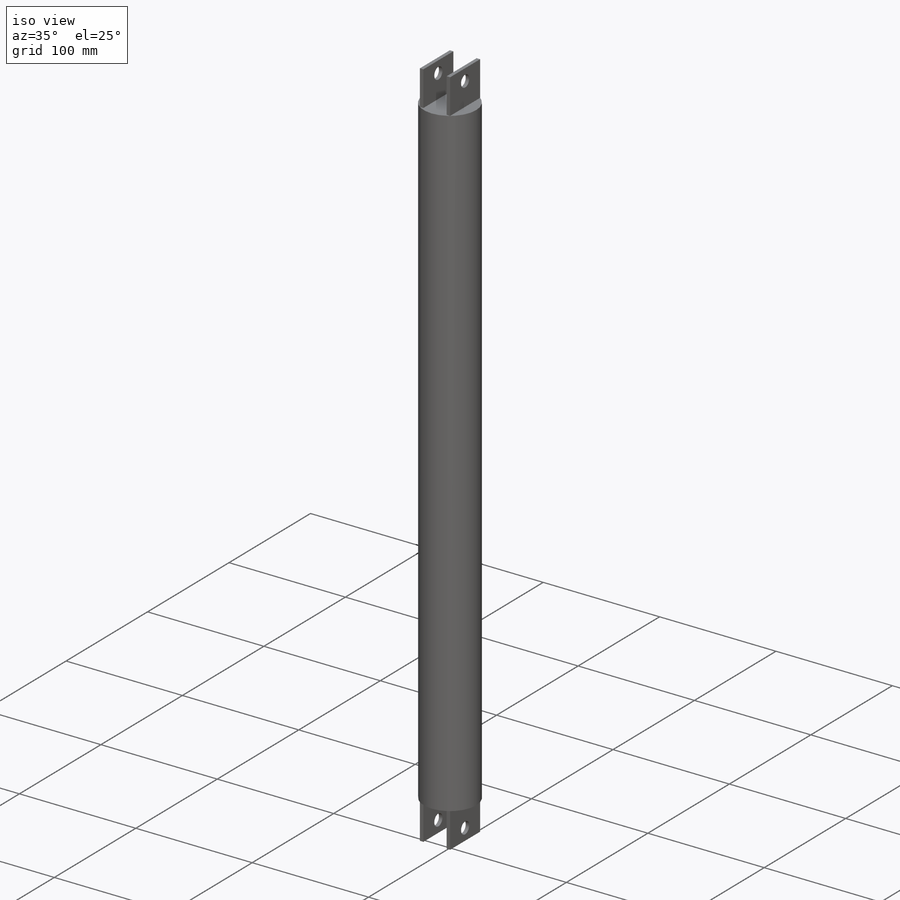
[diagram: iso view]
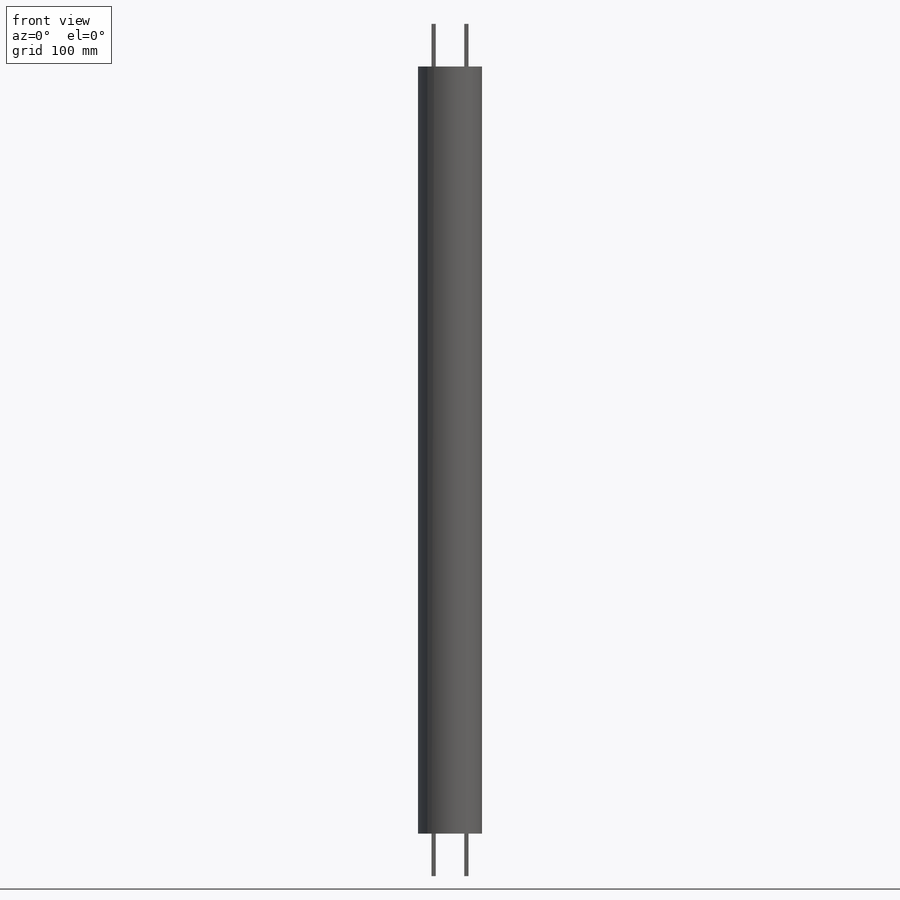
[diagram: front view]
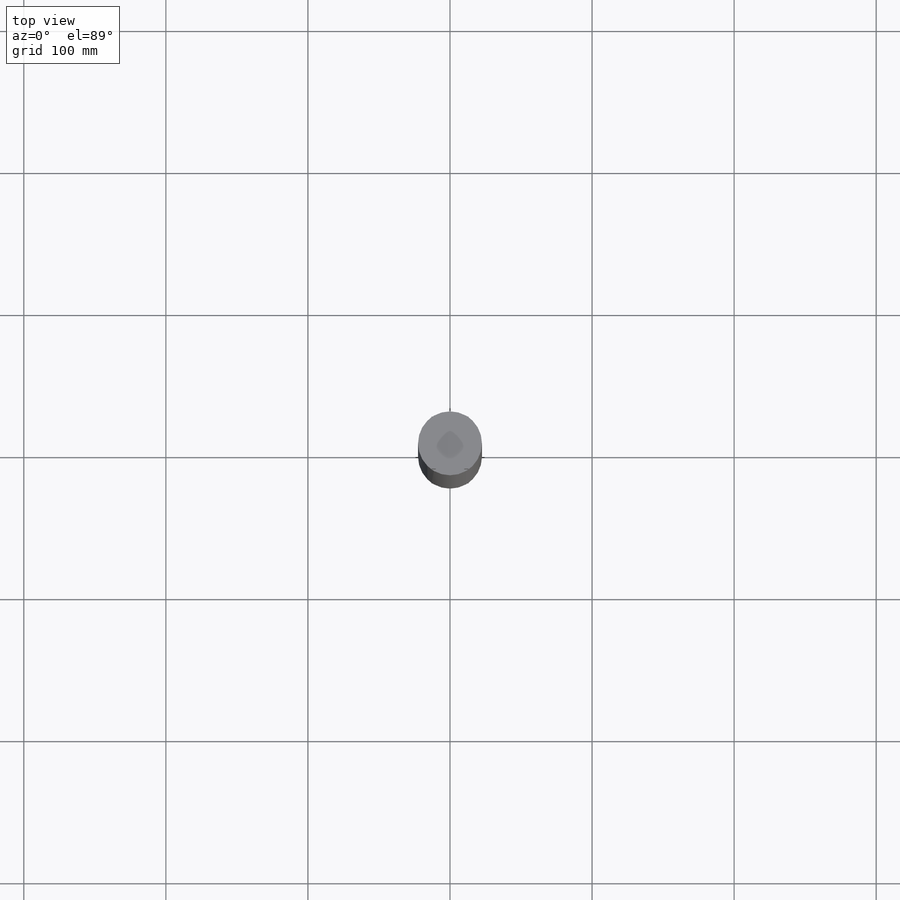
[diagram: top view]
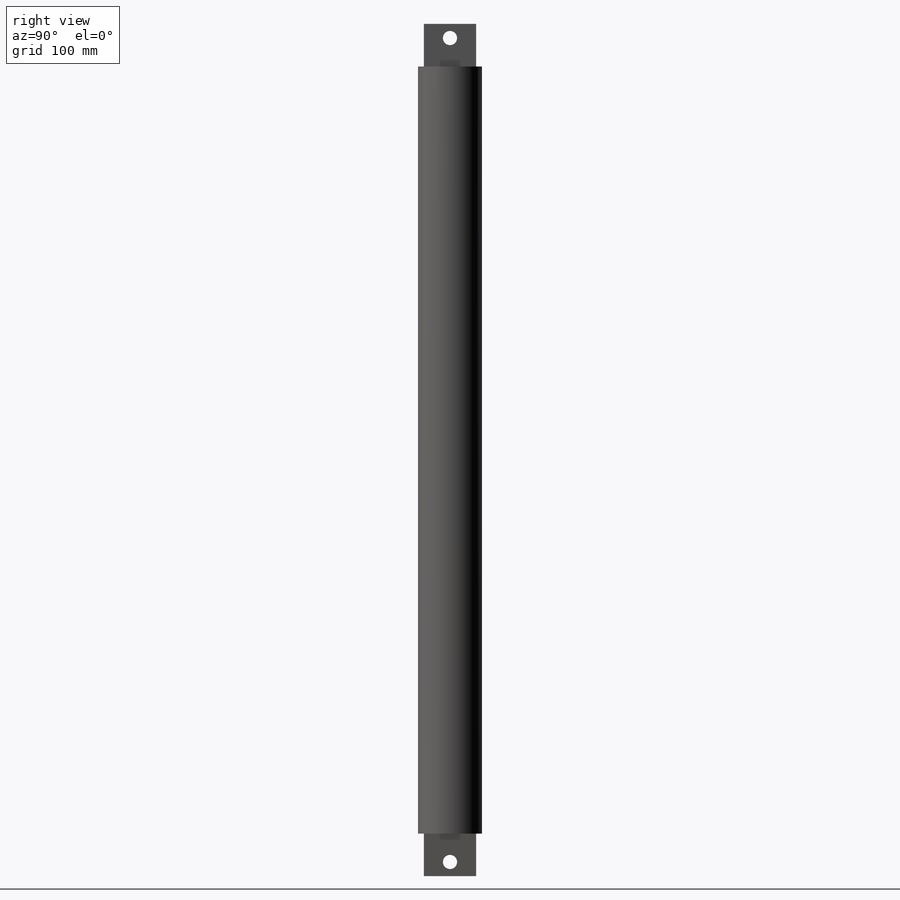
[diagram: right view]
SOLIDWORKS PART (.sldprt)
format: sldprt  version: not decoded by parser v0  size: 269,312 bytes
history: native  units: mm
features: sketch x7, extrude x5, cut_extrude x2, material x1 (+13 scaffold rows collapsed)
feature tree (28):
  scaffold x13  (default folders/planes/origin — collapsed)
  material  "Titanium"
  sketch  "Sketch1"  dims[c1.D1=45.0mm c1.D3=6.0mm c2.D1=2.0mm c2.D2=2.0mm]
  extrude  "Extrude1"  Depth=500mm
  sketch  "Sketch2"
  extrude  "Extrude2"  Depth=20mm
  sketch  "Sketch3"
  extrude  "Extrude3"  Depth=20mm
  sketch  "Sketch5"  dims[D1=3.0mm D2=3.0mm D3=10.0mm]
  extrude  "Extrude4"  Depth=30mm
  sketch  "Sketch7"
  extrude  "Extrude6"  Depth=30mm
  sketch  "Sketch8"  dims[D1=10.0mm D2=10.0mm]
  cut_extrude  "Cut-Extrude1"  [1 undecoded]
  sketch  "Sketch9"  dims[D1=10.0mm D2=10.0mm]
  cut_extrude  "Cut-Extrude2"  [1 undecoded]
decode coverage: 9 of 14 modeling features carry decoded parameters
note: 2 parameter values undecoded
note: suppression state not decoded; provenance and decode notes live in map.json
